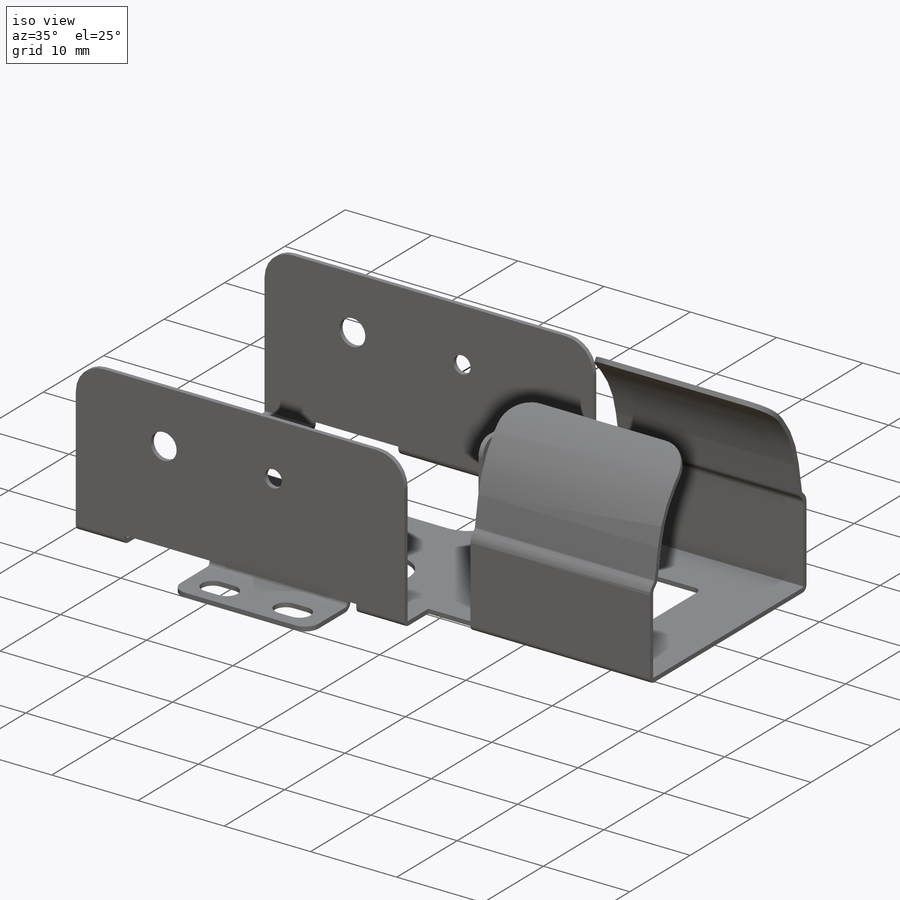
[diagram: iso view]
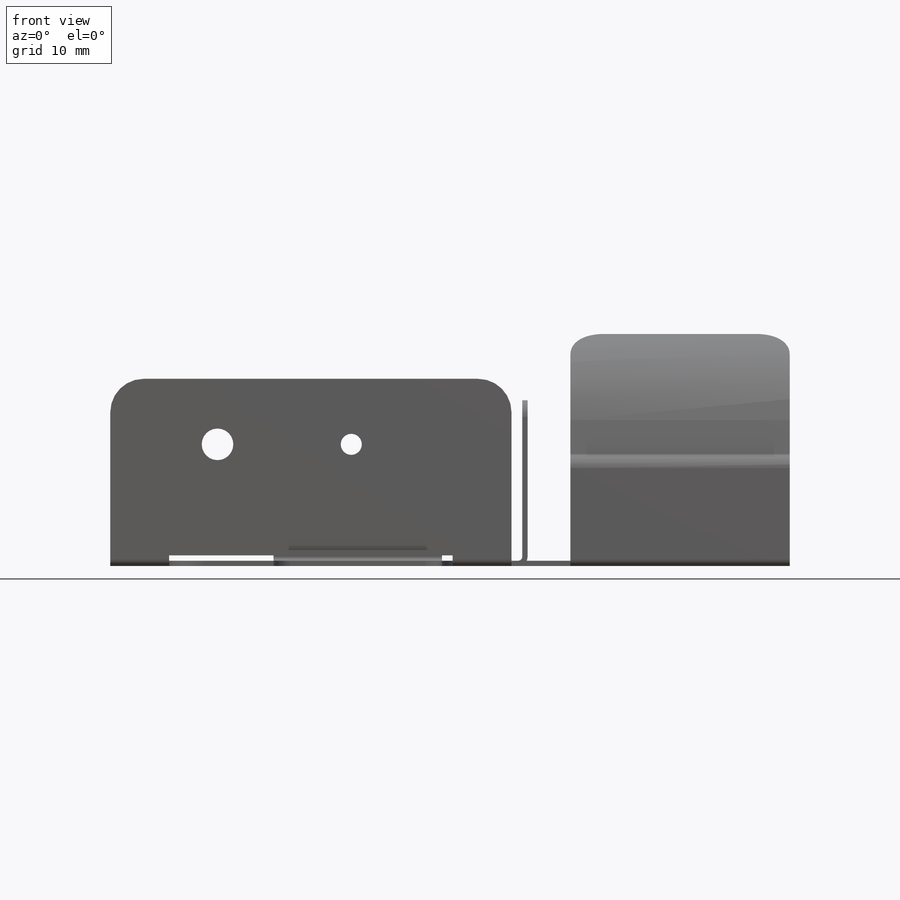
[diagram: front view]
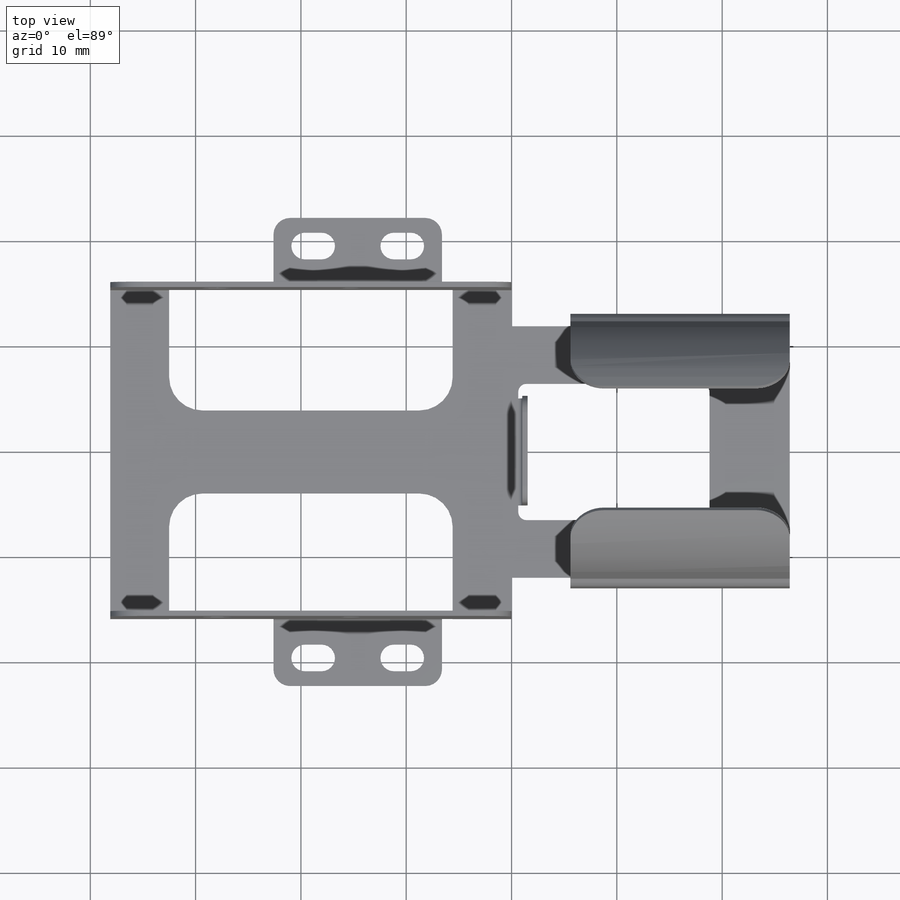
[diagram: top view]
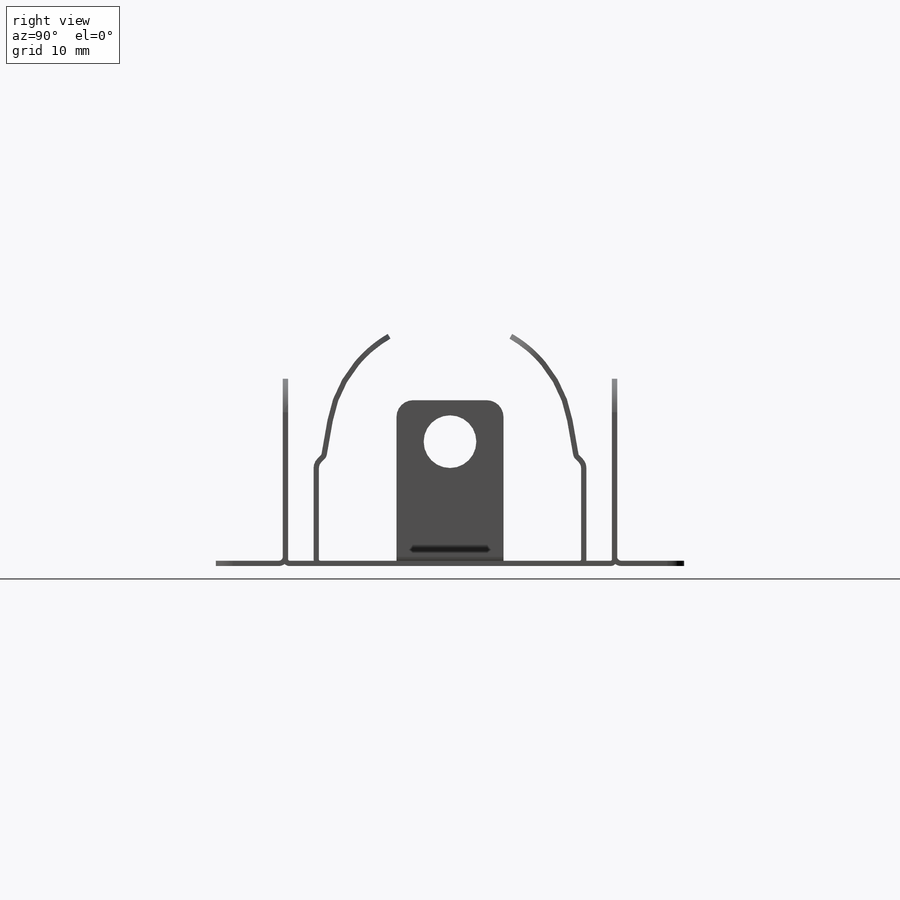
[diagram: right view]
SOLIDWORKS PART (.sldprt)
format: sldprt  version: not decoded by parser v0  size: 942,592 bytes
history: native  units: mm
features: sketch x15, cut_extrude x7, fillet x6, sheet_metal_op x3, mirror x2, material x1, extrude x1 + 11 further entries (+13 scaffold rows collapsed; 1 parser-record rows omitted)
feature tree (60):
  scaffold x13  (default folders/planes/origin — collapsed)
  material  "Material <not specified>"
  sketch  "Sketch1"  dims[c1.D1=~65.96888mm c1.D2=38.1mm c1.D3=59.944mm c1.D4=4.826mm c1.D5=23.876mm c1.D6=41.275mm c2.D3=20.828mm c2.D4=64.516mm]
  extrude  "Boss-Extrude1"  Depth=0.508mm
  sheet_metal_op  "Sheet-Metal1"
  sketch  "Sketch2"  dims[c1.D1=31.75mm c1.D2=25.908mm c2.D1=0.381mm]
  sketch  "Sketch11"  dims[D1=~25.560437mm]
  parser-record x1  (decoder bookkeeping rows leaked as tree rows — omitted from the tree; the rows remain in map.json)
  "SketchBend15"
  "SketchBend16"
  "SketchBend17"
  sketch  "Sketch12"  dims[c1.D4=20.828mm c1.D5=0.762mm c1.D1=~3.065892mm c2.D1=150.0deg c2.D2=~14.218066mm c3.D2=60.0deg c3.D1=~0.923841mm c4.D1=45.0deg c4.D3=~4.596684mm c5.D3=80.0deg c5.D4=1.27mm c5.D6=2.54mm c5.D7=5.0mm]
  fillet  "Fillet1"  Radius=3.175mm
  mirror  "Mirror1"
  fillet  "Fillet2"  Radius=3.175mm
  sketch  "Sketch13"  dims[c1.D1=~12.02207mm c1.D2=~14.10345mm c2.D1=7.62mm c2.D2=12.954mm c2.D3=17.78mm]
  cut_extrude  "Cut-Extrude1"  [1 undecoded]
  sketch  "Sketch17"
  sheet_metal_op  "EdgeBend2"
  sketch  "Sketch18"  dims[c1.D1=~1.379484mm c1.D2=0.508mm c2.D1=~0.254946mm c2.D2=~0.385466mm c3.D1=10.16mm]
  cut_extrude  "Cut-Extrude2"  [1 undecoded]
  fillet  "Fillet3"  Radius=0.79375mm
  fillet  "Fillet4"  Radius=1.5875mm
  sketch  "Sketch20"  dims[D1=~5.00126mm]
  cut_extrude  "Cut-Extrude3"  [1 undecoded]
  sketch  "Sketch21"  dims[c1.D1=~12.119934mm c1.D2=~28.942138mm c2.D1=5.588mm c2.D2=7.874mm c2.D3=5.588mm c2.D4=12.7mm]
  cut_extrude  "Cut-Extrude4"  Depth=1.016mm
  fillet  "Fillet5"  Radius=3.175mm
  sketch  "Sketch24"  dims[D1=31.496mm D2=16.002mm D3=6.35mm]
  sheet_metal_op  "EdgeBend3"
  fillet  "Fillet6"  Radius=1.5875mm
  sketch  "Sketch25"  dims[c1.D3=1.27mm c1.D4=1.27mm c1.D1=19.558mm c1.D2=2.54mm c2.D3=4.1402mm c2.D4=4.318mm]
  cut_extrude  "Cut-Extrude5"  [1 undecoded]
  mirror  "Mirror2"
  "MirrorBend1"
  sketch  "Sketch26"  dims[c1.D2=3.0mm c1.D3=2.0mm c1.D4=3.0mm c1.D1=11.557mm c2.D4=12.7mm c2.D5=10.184mm]
  cut_extrude  "Cut-Extrude6"  [1 undecoded]
  sketch  "Sketch27"  dims[D1=1.143mm D2=5.842mm]
  cut_extrude  "Cut-Extrude7"  Depth=0.0762mm
  "Flat-Pattern1"
  sketch  "Bend-Lines1"
  sketch  "Bounding-Box1"
  "Flatten-<SketchBend15>1"
  "Flatten-<SketchBend16>1"
  "Flatten-<SketchBend17>1"
  "Flatten-<EdgeBend2>1"  Sketch Transformation6=0
  "Flatten-<EdgeBend3>1"
  "Flatten-<MirrorBend1>1"
decode coverage: 21 of 34 modeling features carry decoded parameters; 11 rows unclassified (native names shown)
note: ~ marks probable driven/reference dimensions
note: 5 parameter values undecoded
summary: no parameter record found for 5 features
note: suppression state not decoded; provenance and decode notes live in map.json
